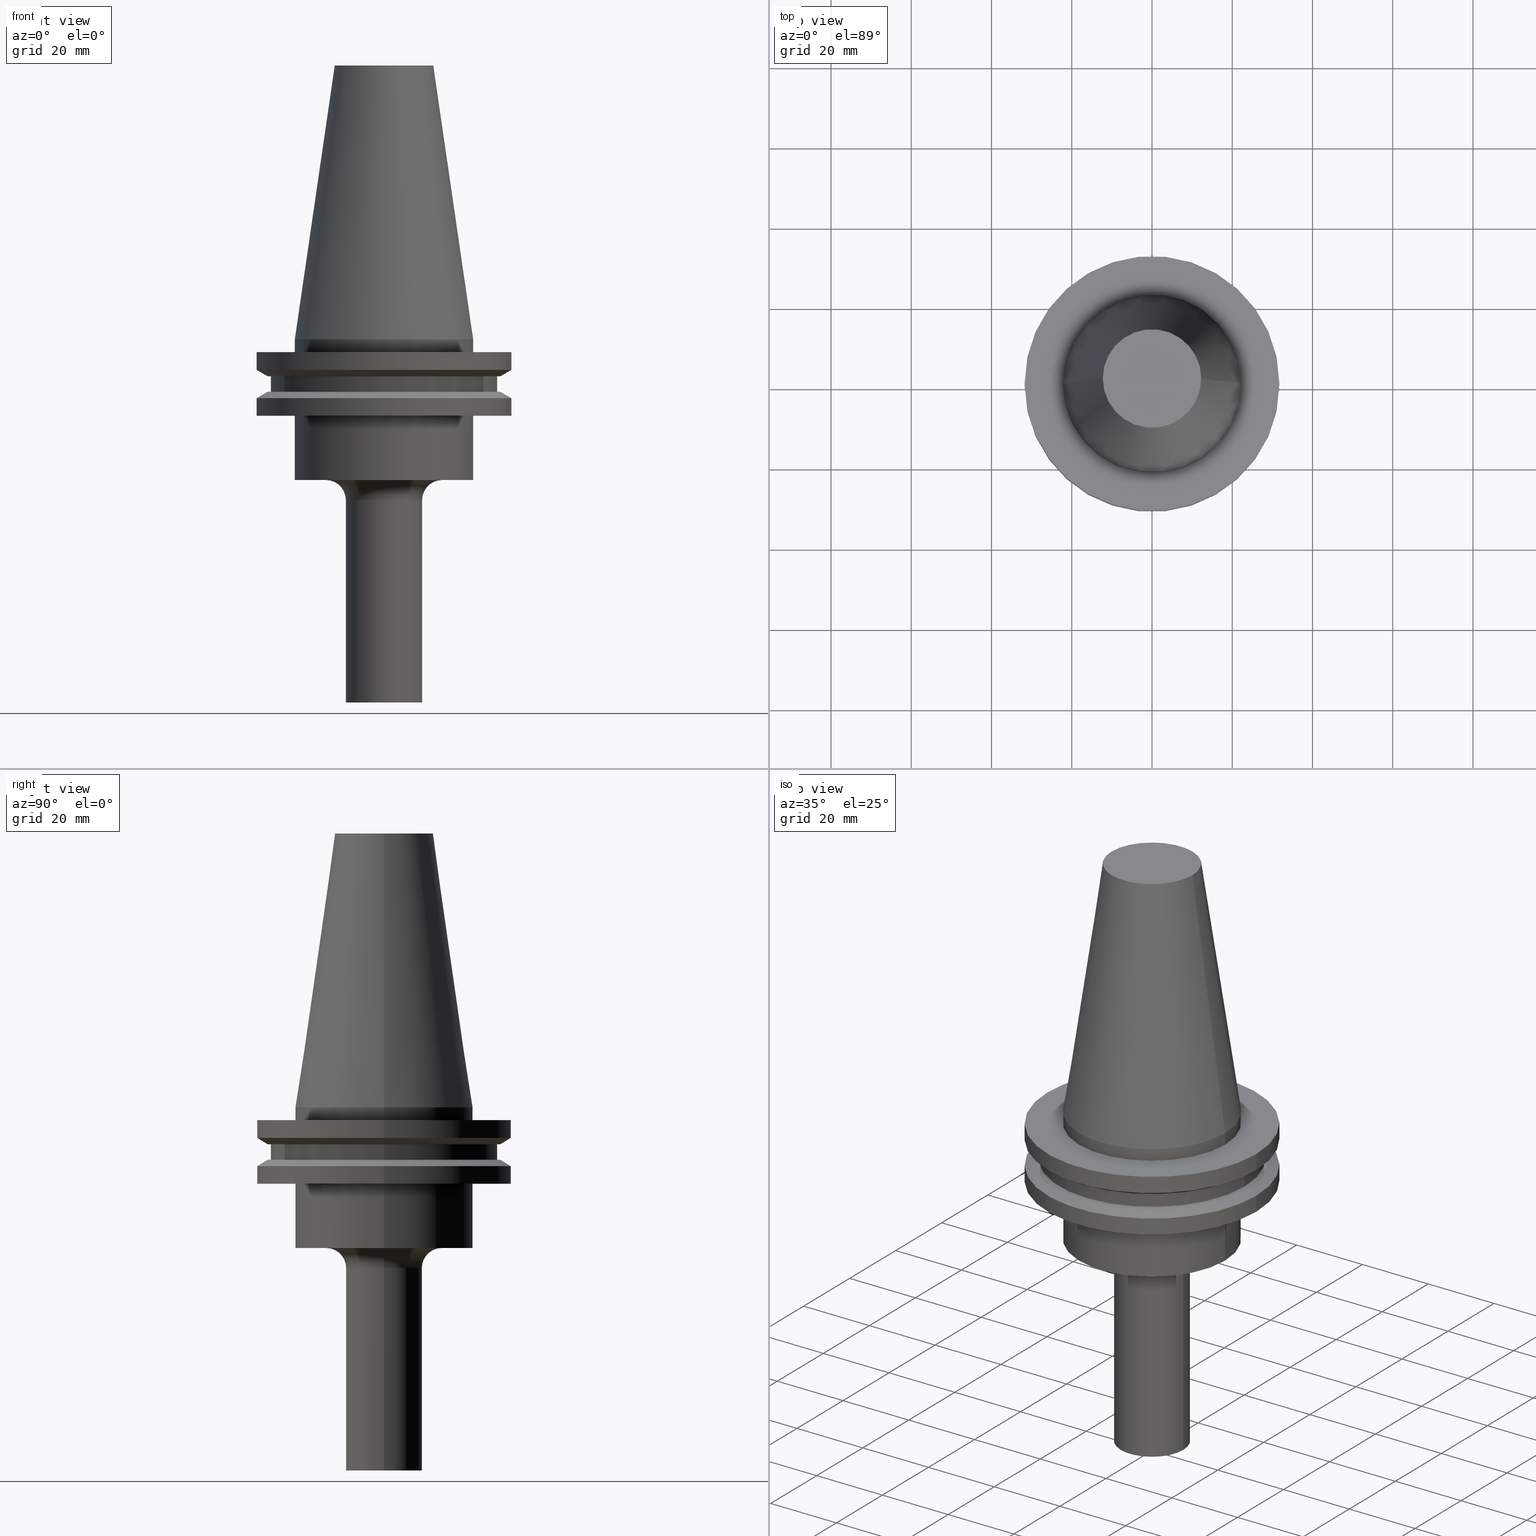
[diagram: canonical four-view strip — front | top / right | iso, engineering-drawing reading convention]
A machine part, canonical four-view strip (front | top / right | iso — engineering-drawing reading convention). The complete STEP part file that produces these views, byte-faithful:
ISO-10303-21;
HEADER;
FILE_DESCRIPTION (( 'STEP AP203' ),
    '1' );
FILE_NAME ('11_326_411.stp',
    '2022-03-07T22:02:29',
    ( '' ),
    ( '' ),
    'SwSTEP 2.0',
    'SolidWorks 2021',
    '' );
FILE_SCHEMA (( 'CONFIG_CONTROL_DESIGN' ));
ENDSEC;

DATA;
#1 = ORIENTED_EDGE ( 'NONE', *, *, #329, .T. ) ;
#2 = CIRCLE ( 'NONE', #444, 31.75000000000000000 ) ;
#3 = EDGE_LOOP ( 'NONE', ( #535, #403 ) ) ;
#4 = AXIS2_PLACEMENT_3D ( 'NONE', #557, #18, #663 ) ;
#5 = AXIS2_PLACEMENT_3D ( 'NONE', #489, #6, #251 ) ;
#6 = DIRECTION ( 'NONE',  ( -0.000000000000000000, -0.000000000000000000, 1.000000000000000000 ) ) ;
#7 = DIRECTION ( 'NONE',  ( 0.000000000000000000, 0.000000000000000000, -1.000000000000000000 ) ) ;
#8 = APPROVAL ( #763, 'UNSPECIFIED' ) ;
#9 = EDGE_CURVE ( 'NONE', #482, #291, #396, .T. ) ;
#10 = CARTESIAN_POINT ( 'NONE',  ( 22.22500000000000142, 0.000000000000000000, -35.04999999999999716 ) ) ;
#11 = DIRECTION ( 'NONE',  ( 1.000000000000000000, 0.000000000000000000, 0.000000000000000000 ) ) ;
#12 = DIRECTION ( 'NONE',  ( 1.000000000000000000, 0.000000000000000000, 0.000000000000000000 ) ) ;
#13 = FACE_OUTER_BOUND ( 'NONE', #108, .T. ) ;
#14 = FACE_OUTER_BOUND ( 'NONE', #57, .T. ) ;
#15 = DIRECTION ( 'NONE',  ( 1.000000000000000000, 0.000000000000000000, 0.000000000000000000 ) ) ;
#16 = CIRCLE ( 'NONE', #457, 31.75000000000000000 ) ;
#17 = CIRCLE ( 'NONE', #183, 12.27178102086201150 ) ;
#18 = DIRECTION ( 'NONE',  ( 0.000000000000000000, 0.000000000000000000, -1.000000000000000000 ) ) ;
#19 = PLANE ( 'NONE',  #759 ) ;
#20 = DIRECTION ( 'NONE',  ( 1.000000000000000000, 0.000000000000000000, 0.000000000000000000 ) ) ;
#21 = CYLINDRICAL_SURFACE ( 'NONE', #324, 22.22500000000000142 ) ;
#22 = DIRECTION ( 'NONE',  ( -0.000000000000000000, -0.000000000000000000, 1.000000000000000000 ) ) ;
#23 = FACE_OUTER_BOUND ( 'NONE', #339, .T. ) ;
#24 = DIRECTION ( 'NONE',  ( -0.000000000000000000, -0.000000000000000000, 1.000000000000000000 ) ) ;
#25 = EDGE_CURVE ( 'NONE', #526, #573, #492, .T. ) ;
#26 = DATE_AND_TIME ( #566, #579 ) ;
#27 = DIRECTION ( 'NONE',  ( -0.000000000000000000, -0.000000000000000000, 1.000000000000000000 ) ) ;
#28 = CIRCLE ( 'NONE', #476, 22.22500000000000142 ) ;
#29 = SECURITY_CLASSIFICATION_LEVEL ( 'unclassified' ) ;
#30 = FACE_OUTER_BOUND ( 'NONE', #717, .T. ) ;
#31 = DIRECTION ( 'NONE',  ( 1.000000000000000000, 0.000000000000000000, 0.000000000000000000 ) ) ;
#32 = ORIENTED_EDGE ( 'NONE', *, *, #355, .F. ) ;
#33 = CYLINDRICAL_SURFACE ( 'NONE', #483, 22.22500000000000142 ) ;
#34 = DIRECTION ( 'NONE',  ( 1.000000000000000000, 0.000000000000000000, 0.000000000000000000 ) ) ;
#35 = CONICAL_SURFACE ( 'NONE', #481, 28.97919780457007732, 1.047197551196598297 ) ;
#36 = APPLICATION_CONTEXT ( 'configuration controlled 3d designs of mechanical parts and assemblies' ) ;
#37 = EDGE_LOOP ( 'NONE', ( #571, #194, #114, #1 ) ) ;
#38 = FACE_OUTER_BOUND ( 'NONE', #301, .T. ) ;
#39 = DIRECTION ( 'NONE',  ( -0.000000000000000000, -0.000000000000000000, 1.000000000000000000 ) ) ;
#40 = APPROVAL_ROLE ( '' ) ;
#41 = CIRCLE ( 'NONE', #644, 4.999999999999997335 ) ;
#42 = VERTEX_POINT ( 'NONE', #129 ) ;
#43 = EDGE_CURVE ( 'NONE', #192, #770, #599, .T. ) ;
#44 = SHAPE_DEFINITION_REPRESENTATION ( #308, #350 ) ;
#45 = CC_DESIGN_APPROVAL ( #292, ( #85 ) ) ;
#46 = EDGE_LOOP ( 'NONE', ( #477, #359 ) ) ;
#47 = DIRECTION ( 'NONE',  ( -0.000000000000000000, -0.000000000000000000, 1.000000000000000000 ) ) ;
#48 = ORIENTED_EDGE ( 'NONE', *, *, #329, .F. ) ;
#49 = AXIS2_PLACEMENT_3D ( 'NONE', #591, #769, #708 ) ;
#50 = ORIENTED_EDGE ( 'NONE', *, *, #167, .T. ) ;
#51 = DIRECTION ( 'NONE',  ( 1.000000000000000000, 0.000000000000000000, 0.000000000000000000 ) ) ;
#52 = LINE ( 'NONE', #413, #548 ) ;
#53 = ORIENTED_EDGE ( 'NONE', *, *, #705, .T. ) ;
#54 = ORIENTED_EDGE ( 'NONE', *, *, #182, .T. ) ;
#55 = ADVANCED_FACE ( 'NONE', ( #13, #601 ), #669, .F. ) ;
#56 = FACE_OUTER_BOUND ( 'NONE', #697, .T. ) ;
#57 = EDGE_LOOP ( 'NONE', ( #484, #706, #767, #427 ) ) ;
#58 = EDGE_CURVE ( 'NONE', #297, #74, #534, .T. ) ;
#59 = EDGE_LOOP ( 'NONE', ( #237, #366, #289, #66 ) ) ;
#60 = VECTOR ( 'NONE', #698, 1000.000000000000000 ) ;
#61 = CARTESIAN_POINT ( 'NONE',  ( 0.000000000000000000, 0.000000000000000000, -9.205000000000005400 ) ) ;
#62 = ORIENTED_EDGE ( 'NONE', *, *, #631, .F. ) ;
#63 = EDGE_LOOP ( 'NONE', ( #539, #753 ) ) ;
#64 = ADVANCED_FACE ( 'NONE', ( #202 ), #604, .T. ) ;
#65 = LINE ( 'NONE', #668, #215 ) ;
#66 = ORIENTED_EDGE ( 'NONE', *, *, #519, .F. ) ;
#67 = EDGE_CURVE ( 'NONE', #234, #772, #16, .T. ) ;
#68 = AXIS2_PLACEMENT_3D ( 'NONE', #310, #546, #7 ) ;
#69 = TOROIDAL_SURFACE ( 'NONE', #83, 14.49999999999999822, 4.999999999999999112 ) ;
#70 = VECTOR ( 'NONE', #733, 1000.000000000000000 ) ;
#71 = DIRECTION ( 'NONE',  ( -0.000000000000000000, -0.000000000000000000, 1.000000000000000000 ) ) ;
#72 = CARTESIAN_POINT ( 'NONE',  ( 0.000000000000000000, 28.97919780457007732, -9.204999999999996518 ) ) ;
#73 = ADVANCED_FACE ( 'NONE', ( #609 ), #78, .F. ) ;
#74 = VERTEX_POINT ( 'NONE', #331 ) ;
#75 = DIRECTION ( 'NONE',  ( 1.000000000000000000, 0.000000000000000000, 0.000000000000000000 ) ) ;
#76 = CARTESIAN_POINT ( 'NONE',  ( 0.000000000000000000, 0.000000000000000000, 68.25000000000000000 ) ) ;
#77 = EDGE_CURVE ( 'NONE', #125, #184, #217, .T. ) ;
#78 = PLANE ( 'NONE',  #4 ) ;
#79 = DIRECTION ( 'NONE',  ( 1.000000000000000000, 0.000000000000000000, 0.000000000000000000 ) ) ;
#80 = AXIS2_PLACEMENT_3D ( 'NONE', #701, #290, #774 ) ;
#81 = DIRECTION ( 'NONE',  ( 1.000000000000000000, 0.000000000000000000, 0.000000000000000000 ) ) ;
#82 = VECTOR ( 'NONE', #567, 1000.000000000000000 ) ;
#83 = AXIS2_PLACEMENT_3D ( 'NONE', #263, #611, #81 ) ;
#84 = DIRECTION ( 'NONE',  ( 0.1443082272672999711, 1.767266086135276757E-17, -0.9895327864921755756 ) ) ;
#85 = PRODUCT_DEFINITION_FORMATION_WITH_SPECIFIED_SOURCE ( 'ANY', '', #336, .NOT_KNOWN. ) ;
#86 = CARTESIAN_POINT ( 'NONE',  ( 31.75000000000000000, 3.888253587292846476E-15, -14.65472339340266572 ) ) ;
#87 = CARTESIAN_POINT ( 'NONE',  ( 0.000000000000000000, 0.000000000000000000, 68.25000000000000000 ) ) ;
#88 = FACE_OUTER_BOUND ( 'NONE', #197, .T. ) ;
#89 = EDGE_CURVE ( 'NONE', #298, #422, #696, .T. ) ;
#90 = DIRECTION ( 'NONE',  ( -0.000000000000000000, -0.000000000000000000, 1.000000000000000000 ) ) ;
#91 = APPROVAL_DATE_TIME ( #744, #200 ) ;
#92 = DIRECTION ( 'NONE',  ( -0.000000000000000000, -0.000000000000000000, 1.000000000000000000 ) ) ;
#93 = ADVANCED_FACE ( 'NONE', ( #30 ), #33, .T. ) ;
#94 = PERSON_AND_ORGANIZATION_ROLE ( 'design_supplier' ) ;
#95 = DIRECTION ( 'NONE',  ( -1.000000000000000000, 1.224646799147353454E-16, 0.000000000000000000 ) ) ;
#96 = AXIS2_PLACEMENT_3D ( 'NONE', #563, #22, #266 ) ;
#97 = ORIENTED_EDGE ( 'NONE', *, *, #508, .F. ) ;
#98 = CARTESIAN_POINT ( 'NONE',  ( 0.000000000000000000, 0.000000000000000000, 68.25000000000000000 ) ) ;
#99 = FACE_OUTER_BOUND ( 'NONE', #363, .T. ) ;
#100 = APPLICATION_PROTOCOL_DEFINITION ( 'international standard', 'config_control_design', 1994, #469 ) ;
#101 = VERTEX_POINT ( 'NONE', #334 ) ;
#102 = FACE_OUTER_BOUND ( 'NONE', #700, .T. ) ;
#103 = DIRECTION ( 'NONE',  ( 0.000000000000000000, 0.000000000000000000, 1.000000000000000000 ) ) ;
#104 = EDGE_CURVE ( 'NONE', #666, #422, #686, .T. ) ;
#105 = ORIENTED_EDGE ( 'NONE', *, *, #294, .T. ) ;
#106 = VECTOR ( 'NONE', #402, 1000.000000000000000 ) ;
#107 = EDGE_CURVE ( 'NONE', #422, #298, #556, .T. ) ;
#108 = EDGE_LOOP ( 'NONE', ( #664, #581 ) ) ;
#109 = PLANE ( 'NONE',  #368 ) ;
#110 = ORIENTED_EDGE ( 'NONE', *, *, #67, .F. ) ;
#111 = CC_DESIGN_APPROVAL ( #8, ( #388 ) ) ;
#112 = ORIENTED_EDGE ( 'NONE', *, *, #531, .T. ) ;
#113 = CARTESIAN_POINT ( 'NONE',  ( -14.49999999999999822, 1.775737858763662015E-15, -35.04999999999999716 ) ) ;
#114 = ORIENTED_EDGE ( 'NONE', *, *, #582, .T. ) ;
#115 = ORIENTED_EDGE ( 'NONE', *, *, #107, .F. ) ;
#116 = DIRECTION ( 'NONE',  ( 1.000000000000000000, 0.000000000000000000, 0.000000000000000000 ) ) ;
#117 = DIRECTION ( 'NONE',  ( -0.000000000000000000, -0.000000000000000000, 1.000000000000000000 ) ) ;
#118 = ORIENTED_EDGE ( 'NONE', *, *, #511, .T. ) ;
#119 = ORIENTED_EDGE ( 'NONE', *, *, #89, .F. ) ;
#120 = DIRECTION ( 'NONE',  ( 1.000000000000000000, 0.000000000000000000, 0.000000000000000000 ) ) ;
#121 = EDGE_LOOP ( 'NONE', ( #246, #645, #261, #177 ) ) ;
#122 = AXIS2_PLACEMENT_3D ( 'NONE', #327, #92, #734 ) ;
#123 = APPROVAL_PERSON_ORGANIZATION ( #229, #200, #40 ) ;
#124 = EDGE_CURVE ( 'NONE', #577, #776, #729, .T. ) ;
#125 = VERTEX_POINT ( 'NONE', #338 ) ;
#126 = ORIENTED_EDGE ( 'NONE', *, *, #127, .T. ) ;
#127 = EDGE_CURVE ( 'NONE', #712, #234, #278, .T. ) ;
#128 = CARTESIAN_POINT ( 'NONE',  ( 0.000000000000000000, 31.75000000000000000, -3.174999999999993605 ) ) ;
#129 = CARTESIAN_POINT ( 'NONE',  ( -28.17999999999999972, 3.451054679997241634E-15, -9.204999999999991189 ) ) ;
#130 = AXIS2_PLACEMENT_3D ( 'NONE', #256, #552, #207 ) ;
#131 = CIRCLE ( 'NONE', #561, 22.22500000000000142 ) ;
#132 = DIRECTION ( 'NONE',  ( 0.8660254037844389297, 0.000000000000000000, 0.4999999999999995004 ) ) ;
#133 = DIRECTION ( 'NONE',  ( 1.000000000000000000, 0.000000000000000000, 0.000000000000000000 ) ) ;
#134 = CARTESIAN_POINT ( 'NONE',  ( 0.000000000000000000, 0.000000000000000000, 68.25000000000000000 ) ) ;
#135 = CARTESIAN_POINT ( 'NONE',  ( 0.000000000000000000, 0.000000000000000000, -7.605276606597335842 ) ) ;
#136 = EDGE_CURVE ( 'NONE', #353, #297, #750, .T. ) ;
#137 = DIRECTION ( 'NONE',  ( -0.000000000000000000, -0.000000000000000000, 1.000000000000000000 ) ) ;
#138 = DIRECTION ( 'NONE',  ( -1.000000000000000000, 0.000000000000000000, -0.000000000000000000 ) ) ;
#139 = CARTESIAN_POINT ( 'NONE',  ( 0.000000000000000000, 0.000000000000000000, 0.000000000000000000 ) ) ;
#140 = EDGE_CURVE ( 'NONE', #184, #515, #660, .T. ) ;
#141 = CARTESIAN_POINT ( 'NONE',  ( -9.500000000000000000, 1.163414459189985485E-15, -90.50000000000000000 ) ) ;
#142 = CARTESIAN_POINT ( 'NONE',  ( 22.22500000000000142, 0.000000000000000000, 68.25000000000000000 ) ) ;
#143 = AXIS2_PLACEMENT_3D ( 'NONE', #87, #330, #620 ) ;
#144 = FACE_OUTER_BOUND ( 'NONE', #320, .T. ) ;
#145 = CIRCLE ( 'NONE', #684, 31.74999999999999289 ) ;
#146 = DIRECTION ( 'NONE',  ( -0.000000000000000000, -0.000000000000000000, 1.000000000000000000 ) ) ;
#147 = AXIS2_PLACEMENT_3D ( 'NONE', #451, #27, #398 ) ;
#148 = FACE_OUTER_BOUND ( 'NONE', #186, .T. ) ;
#149 = CIRCLE ( 'NONE', #165, 28.97919780457008088 ) ;
#150 = ADVANCED_FACE ( 'NONE', ( #148 ), #21, .T. ) ;
#151 = CARTESIAN_POINT ( 'NONE',  ( 0.000000000000000000, 0.000000000000000000, 0.000000000000000000 ) ) ;
#152 = ORIENTED_EDGE ( 'NONE', *, *, #582, .F. ) ;
#153 = CC_DESIGN_PERSON_AND_ORGANIZATION_ASSIGNMENT ( #394, #749, ( #85 ) ) ;
#154 = CALENDAR_DATE ( 2022, 7, 3 ) ;
#155 = CARTESIAN_POINT ( 'NONE',  ( 22.22500000000000142, 2.721777511104992849E-15, 0.000000000000000000 ) ) ;
#156 = ADVANCED_FACE ( 'NONE', ( #88 ), #282, .F. ) ;
#157 = DIRECTION ( 'NONE',  ( -0.000000000000000000, -0.000000000000000000, 1.000000000000000000 ) ) ;
#158 = ADVANCED_FACE ( 'NONE', ( #99 ), #265, .T. ) ;
#159 = APPROVAL_STATUS ( 'not_yet_approved' ) ;
#160 = CARTESIAN_POINT ( 'NONE',  ( 0.000000000000000000, 0.000000000000000000, 68.25000000000000000 ) ) ;
#161 = UNCERTAINTY_MEASURE_WITH_UNIT (LENGTH_MEASURE( 1.000000000000000082E-05 ), #345, 'distance_accuracy_value', 'NONE');
#162 = AXIS2_PLACEMENT_3D ( 'NONE', #255, #424, #133 ) ;
#163 = CARTESIAN_POINT ( 'NONE',  ( -22.22500000000000142, 2.721777511104992849E-15, 68.25000000000000000 ) ) ;
#164 = DIRECTION ( 'NONE',  ( -0.000000000000000000, -0.000000000000000000, 1.000000000000000000 ) ) ;
#165 = AXIS2_PLACEMENT_3D ( 'NONE', #754, #341, #637 ) ;
#166 = ORIENTED_EDGE ( 'NONE', *, *, #136, .F. ) ;
#167 = EDGE_CURVE ( 'NONE', #369, #731, #41, .T. ) ;
#168 = MANIFOLD_SOLID_BREP ( 'CKB', #423 ) ;
#169 = CARTESIAN_POINT ( 'NONE',  ( -28.97919780457008088, 0.000000000000000000, -13.05499999999999794 ) ) ;
#170 = LINE ( 'NONE', #470, #106 ) ;
#171 =( NAMED_UNIT ( * ) SI_UNIT ( $, .STERADIAN. ) SOLID_ANGLE_UNIT ( ) );
#172 = CONICAL_SURFACE ( 'NONE', #711, 28.97919780457007732, 1.047197551196598297 ) ;
#173 = ORIENTED_EDGE ( 'NONE', *, *, #370, .T. ) ;
#174 = FACE_BOUND ( 'NONE', #188, .T. ) ;
#175 = CARTESIAN_POINT ( 'NONE',  ( 0.000000000000000000, 0.000000000000000000, 0.000000000000000000 ) ) ;
#176 = ORIENTED_EDGE ( 'NONE', *, *, #348, .T. ) ;
#177 = ORIENTED_EDGE ( 'NONE', *, *, #305, .F. ) ;
#178 = CARTESIAN_POINT ( 'NONE',  ( -31.75000000000000000, 3.888253587292846476E-15, 68.25000000000000000 ) ) ;
#179 = VECTOR ( 'NONE', #395, 1000.000000000000000 ) ;
#180 = DIRECTION ( 'NONE',  ( 1.000000000000000000, 0.000000000000000000, 0.000000000000000000 ) ) ;
#181 = ORIENTED_EDGE ( 'NONE', *, *, #214, .T. ) ;
#182 = EDGE_CURVE ( 'NONE', #353, #630, #740, .T. ) ;
#183 = AXIS2_PLACEMENT_3D ( 'NONE', #76, #434, #672 ) ;
#184 = VERTEX_POINT ( 'NONE', #155 ) ;
#185 = DIRECTION ( 'NONE',  ( 1.000000000000000000, 0.000000000000000000, 0.000000000000000000 ) ) ;
#186 = EDGE_LOOP ( 'NONE', ( #578, #714, #480, #405 ) ) ;
#187 = CIRCLE ( 'NONE', #594, 28.17999999999999972 ) ;
#188 = EDGE_LOOP ( 'NONE', ( #173, #641 ) ) ;
#189 = CARTESIAN_POINT ( 'NONE',  ( 31.75000000000000000, 0.000000000000000000, -14.65472339340266572 ) ) ;
#190 = EDGE_CURVE ( 'NONE', #225, #739, #652, .T. ) ;
#191 = VECTOR ( 'NONE', #410, 1000.000000000000000 ) ;
#192 = VERTEX_POINT ( 'NONE', #692 ) ;
#193 = AXIS2_PLACEMENT_3D ( 'NONE', #761, #357, #232 ) ;
#194 = ORIENTED_EDGE ( 'NONE', *, *, #777, .F. ) ;
#195 = AXIS2_PLACEMENT_3D ( 'NONE', #269, #570, #695 ) ;
#196 = EDGE_CURVE ( 'NONE', #287, #42, #187, .T. ) ;
#197 = EDGE_LOOP ( 'NONE', ( #467, #649 ) ) ;
#198 = FACE_OUTER_BOUND ( 'NONE', #640, .T. ) ;
#199 = CARTESIAN_POINT ( 'NONE',  ( 0.000000000000000000, 0.000000000000000000, -90.50000000000000000 ) ) ;
#200 = APPROVAL ( #575, 'UNSPECIFIED' ) ;
#201 = FACE_BOUND ( 'NONE', #46, .T. ) ;
#202 = FACE_OUTER_BOUND ( 'NONE', #280, .T. ) ;
#203 = CYLINDRICAL_SURFACE ( 'NONE', #522, 28.17999999999999972 ) ;
#204 = DIRECTION ( 'NONE',  ( 1.000000000000000000, 0.000000000000000000, 0.000000000000000000 ) ) ;
#205 = CC_DESIGN_PERSON_AND_ORGANIZATION_ASSIGNMENT ( #333, #94, ( #85 ) ) ;
#206 = ORIENTED_EDGE ( 'NONE', *, *, #253, .T. ) ;
#207 = DIRECTION ( 'NONE',  ( 1.000000000000000000, 0.000000000000000000, 0.000000000000000000 ) ) ;
#208 = DIRECTION ( 'NONE',  ( 1.000000000000000000, 0.000000000000000000, 0.000000000000000000 ) ) ;
#209 = DIRECTION ( 'NONE',  ( 1.000000000000000000, 0.000000000000000000, 0.000000000000000000 ) ) ;
#210 = EDGE_CURVE ( 'NONE', #666, #521, #605, .T. ) ;
#211 = CARTESIAN_POINT ( 'NONE',  ( 31.75000000000000000, 0.000000000000000000, 68.25000000000000000 ) ) ;
#212 = PLANE ( 'NONE',  #537 ) ;
#213 = DIRECTION ( 'NONE',  ( -0.1443082272672999711, 0.000000000000000000, -0.9895327864921755756 ) ) ;
#214 = EDGE_CURVE ( 'NONE', #101, #515, #532, .T. ) ;
#215 = VECTOR ( 'NONE', #487, 1000.000000000000000 ) ;
#216 = APPROVAL_DATE_TIME ( #223, #292 ) ;
#217 = LINE ( 'NONE', #741, #589 ) ;
#218 = LINE ( 'NONE', #502, #608 ) ;
#219 = DATE_TIME_ROLE ( 'classification_date' ) ;
#220 = DIRECTION ( 'NONE',  ( -0.000000000000000000, -0.000000000000000000, 1.000000000000000000 ) ) ;
#221 = AXIS2_PLACEMENT_3D ( 'NONE', #647, #584, #51 ) ;
#222 = CARTESIAN_POINT ( 'NONE',  ( 0.000000000000000000, 0.000000000000000000, -14.65472339340266572 ) ) ;
#223 = DATE_AND_TIME ( #154, #719 ) ;
#224 = DIRECTION ( 'NONE',  ( -0.000000000000000000, -0.000000000000000000, 1.000000000000000000 ) ) ;
#225 = VERTEX_POINT ( 'NONE', #285 ) ;
#226 = VECTOR ( 'NONE', #445, 1000.000000000000000 ) ;
#227 = CARTESIAN_POINT ( 'NONE',  ( -9.499999999999998224, 1.163414459189985288E-15, -40.04999999999999716 ) ) ;
#228 = DIRECTION ( 'NONE',  ( -1.000000000000000000, 0.000000000000000000, 0.000000000000000000 ) ) ;
#229 = PERSON_AND_ORGANIZATION ( #239, #460 ) ;
#230 = AXIS2_PLACEMENT_3D ( 'NONE', #139, #494, #322 ) ;
#231 = EDGE_LOOP ( 'NONE', ( #347, #53, #358, #152 ) ) ;
#232 = DIRECTION ( 'NONE',  ( 1.000000000000000000, 0.000000000000000000, 0.000000000000000000 ) ) ;
#233 = ORIENTED_EDGE ( 'NONE', *, *, #43, .T. ) ;
#234 = VERTEX_POINT ( 'NONE', #699 ) ;
#235 = DIRECTION ( 'NONE',  ( -0.000000000000000000, -0.000000000000000000, 1.000000000000000000 ) ) ;
#236 = EDGE_LOOP ( 'NONE', ( #760, #399, #538, #490 ) ) ;
#237 = ORIENTED_EDGE ( 'NONE', *, *, #373, .F. ) ;
#238 = DIRECTION ( 'NONE',  ( -0.000000000000000000, -0.000000000000000000, 1.000000000000000000 ) ) ;
#239 = PERSON ( 'UNSPECIFIED', 'UNSPECIFIED', 'UNSPECIFIED', ('UNSPECIFIED'), ('UNSPECIFIED'), ('UNSPECIFIED') ) ;
#240 = ADVANCED_FACE ( 'NONE', ( #766 ), #172, .T. ) ;
#241 = ORIENTED_EDGE ( 'NONE', *, *, #355, .T. ) ;
#242 = CIRCLE ( 'NONE', #96, 12.27178102086201150 ) ;
#243 = ORIENTED_EDGE ( 'NONE', *, *, #495, .T. ) ;
#244 = CARTESIAN_POINT ( 'NONE',  ( 0.000000000000000000, 0.000000000000000000, -9.205000000000005400 ) ) ;
#245 = ORIENTED_EDGE ( 'NONE', *, *, #364, .F. ) ;
#246 = ORIENTED_EDGE ( 'NONE', *, *, #190, .T. ) ;
#247 = ADVANCED_FACE ( 'NONE', ( #102 ), #580, .T. ) ;
#248 = ORIENTED_EDGE ( 'NONE', *, *, #348, .F. ) ;
#249 = CIRCLE ( 'NONE', #661, 31.75000000000000000 ) ;
#250 = APPROVAL_PERSON_ORGANIZATION ( #509, #8, #651 ) ;
#251 = DIRECTION ( 'NONE',  ( 1.000000000000000000, 0.000000000000000000, 0.000000000000000000 ) ) ;
#252 = DIRECTION ( 'NONE',  ( -0.000000000000000000, -0.000000000000000000, 1.000000000000000000 ) ) ;
#253 = EDGE_CURVE ( 'NONE', #712, #283, #400, .T. ) ;
#254 = CARTESIAN_POINT ( 'NONE',  ( -31.74999999999999289, 3.888253587292845687E-15, -19.04999999999999716 ) ) ;
#255 = CARTESIAN_POINT ( 'NONE',  ( 0.000000000000000000, 0.000000000000000000, -14.65472339340266572 ) ) ;
#256 = CARTESIAN_POINT ( 'NONE',  ( 0.000000000000000000, 0.000000000000000000, 68.25000000000000000 ) ) ;
#257 = CARTESIAN_POINT ( 'NONE',  ( 0.000000000000000000, 0.000000000000000000, -7.605276606597335842 ) ) ;
#258 = CYLINDRICAL_SURFACE ( 'NONE', #230, 9.499999999999998224 ) ;
#259 = FACE_OUTER_BOUND ( 'NONE', #236, .T. ) ;
#260 = AXIS2_PLACEMENT_3D ( 'NONE', #98, #284, #397 ) ;
#261 = ORIENTED_EDGE ( 'NONE', *, *, #196, .F. ) ;
#262 = DIRECTION ( 'NONE',  ( -0.000000000000000000, -0.000000000000000000, 1.000000000000000000 ) ) ;
#263 = CARTESIAN_POINT ( 'NONE',  ( 0.000000000000000000, 0.000000000000000000, -40.04999999999999716 ) ) ;
#264 = AXIS2_PLACEMENT_3D ( 'NONE', #61, #238, #185 ) ;
#265 = CYLINDRICAL_SURFACE ( 'NONE', #147, 31.75000000000000000 ) ;
#266 = DIRECTION ( 'NONE',  ( 1.000000000000000000, 0.000000000000000000, 0.000000000000000000 ) ) ;
#267 = CARTESIAN_POINT ( 'NONE',  ( -28.17999999999999972, 3.451054679997241634E-15, 68.25000000000000000 ) ) ;
#268 = ADVANCED_FACE ( 'NONE', ( #174, #56 ), #109, .F. ) ;
#269 = CARTESIAN_POINT ( 'NONE',  ( 0.000000000000000000, 9.500000000000000000, -90.50000000000000000 ) ) ;
#270 = CARTESIAN_POINT ( 'NONE',  ( 22.22500000000000142, 0.000000000000000000, -19.04999999999999716 ) ) ;
#271 = AXIS2_PLACEMENT_3D ( 'NONE', #199, #252, #379 ) ;
#272 = VECTOR ( 'NONE', #132, 1000.000000000000000 ) ;
#273 = PERSON_AND_ORGANIZATION ( #239, #460 ) ;
#274 = CARTESIAN_POINT ( 'NONE',  ( 0.000000000000000000, 0.000000000000000000, -13.05499999999999794 ) ) ;
#275 = CC_DESIGN_PERSON_AND_ORGANIZATION_ASSIGNMENT ( #453, #337, ( #335 ) ) ;
#276 = DIRECTION ( 'NONE',  ( -1.000000000000000000, 0.000000000000000000, 0.000000000000000000 ) ) ;
#277 = PERSON_AND_ORGANIZATION_ROLE ( 'classification_officer' ) ;
#278 = LINE ( 'NONE', #500, #82 ) ;
#279 = ADVANCED_FACE ( 'NONE', ( #755 ), #752, .T. ) ;
#280 = EDGE_LOOP ( 'NONE', ( #62, #468, #344, #32 ) ) ;
#281 = LINE ( 'NONE', #163, #60 ) ;
#282 = PLANE ( 'NONE',  #195 ) ;
#283 = VERTEX_POINT ( 'NONE', #421 ) ;
#284 = DIRECTION ( 'NONE',  ( -0.000000000000000000, -0.000000000000000000, 1.000000000000000000 ) ) ;
#285 = CARTESIAN_POINT ( 'NONE',  ( 28.17999999999999972, 0.000000000000000000, -13.05499999999999794 ) ) ;
#286 = COORDINATED_UNIVERSAL_TIME_OFFSET ( 6, 0, .BEHIND. ) ;
#287 = VERTEX_POINT ( 'NONE', #536 ) ;
#288 = TOROIDAL_SURFACE ( 'NONE', #374, 14.49999999999999822, 4.999999999999999112 ) ;
#289 = ORIENTED_EDGE ( 'NONE', *, *, #305, .T. ) ;
#290 = DIRECTION ( 'NONE',  ( -0.000000000000000000, -0.000000000000000000, 1.000000000000000000 ) ) ;
#291 = VERTEX_POINT ( 'NONE', #346 ) ;
#292 = APPROVAL ( #159, 'UNSPECIFIED' ) ;
#293 = ORIENTED_EDGE ( 'NONE', *, *, #746, .T. ) ;
#294 = EDGE_CURVE ( 'NONE', #630, #353, #145, .T. ) ;
#295 = LINE ( 'NONE', #267, #656 ) ;
#296 = LINE ( 'NONE', #443, #742 ) ;
#297 = VERTEX_POINT ( 'NONE', #189 ) ;
#298 = VERTEX_POINT ( 'NONE', #642 ) ;
#299 = DIRECTION ( 'NONE',  ( -0.000000000000000000, -0.000000000000000000, 1.000000000000000000 ) ) ;
#300 = AXIS2_PLACEMENT_3D ( 'NONE', #562, #384, #208 ) ;
#301 = EDGE_LOOP ( 'NONE', ( #636, #293, #115, #541 ) ) ;
#302 = COORDINATED_UNIVERSAL_TIME_OFFSET ( 6, 0, .BEHIND. ) ;
#303 = CONICAL_SURFACE ( 'NONE', #732, 31.75000000000000000, 1.047197551196597853 ) ;
#304 = VERTEX_POINT ( 'NONE', #713 ) ;
#305 = EDGE_CURVE ( 'NONE', #225, #287, #574, .T. ) ;
#306 = EDGE_CURVE ( 'NONE', #521, #666, #576, .T. ) ;
#307 = ORIENTED_EDGE ( 'NONE', *, *, #306, .F. ) ;
#308 = PRODUCT_DEFINITION_SHAPE ( 'NONE', 'NONE',  #335 ) ;
#309 = CARTESIAN_POINT ( 'NONE',  ( 0.000000000000000000, 0.000000000000000000, 68.25000000000000000 ) ) ;
#310 = CARTESIAN_POINT ( 'NONE',  ( 14.49999999999999822, 0.000000000000000000, -40.04999999999999716 ) ) ;
#311 = CIRCLE ( 'NONE', #773, 14.49999999999999822 ) ;
#312 = ADVANCED_FACE ( 'NONE', ( #658 ), #716, .T. ) ;
#313 = CC_DESIGN_SECURITY_CLASSIFICATION ( #388, ( #85 ) ) ;
#314 = DIRECTION ( 'NONE',  ( 1.000000000000000000, 0.000000000000000000, 0.000000000000000000 ) ) ;
#315 = DIRECTION ( 'NONE',  ( 0.000000000000000000, -0.000000000000000000, 1.000000000000000000 ) ) ;
#316 = CYLINDRICAL_SURFACE ( 'NONE', #130, 22.22500000000000142 ) ;
#317 = ORIENTED_EDGE ( 'NONE', *, *, #127, .F. ) ;
#318 = CARTESIAN_POINT ( 'NONE',  ( -22.22500000000000142, 2.721777511104992849E-15, -35.04999999999999716 ) ) ;
#319 = VECTOR ( 'NONE', #299, 1000.000000000000000 ) ;
#320 = EDGE_LOOP ( 'NONE', ( #725, #233 ) ) ;
#321 = DIRECTION ( 'NONE',  ( 1.000000000000000000, 0.000000000000000000, 0.000000000000000000 ) ) ;
#322 = DIRECTION ( 'NONE',  ( 1.000000000000000000, 0.000000000000000000, 0.000000000000000000 ) ) ;
#323 = CARTESIAN_POINT ( 'NONE',  ( -31.75000000000000000, 0.000000000000000000, -14.65472339340266572 ) ) ;
#324 = AXIS2_PLACEMENT_3D ( 'NONE', #389, #504, #618 ) ;
#325 = FACE_OUTER_BOUND ( 'NONE', #588, .T. ) ;
#326 = LOCAL_TIME ( 16, 2, 29.00000000000000000, #286 ) ;
#327 = CARTESIAN_POINT ( 'NONE',  ( 0.000000000000000000, 0.000000000000000000, -19.04999999999999716 ) ) ;
#328 = CARTESIAN_POINT ( 'NONE',  ( -28.97919780457007732, 3.718590885307660666E-15, -9.205000000000005400 ) ) ;
#329 = EDGE_CURVE ( 'NONE', #74, #297, #2, .T. ) ;
#330 = DIRECTION ( 'NONE',  ( -0.000000000000000000, -0.000000000000000000, 1.000000000000000000 ) ) ;
#331 = CARTESIAN_POINT ( 'NONE',  ( -31.75000000000000000, 3.888253587292846476E-15, -14.65472339340266572 ) ) ;
#332 = CARTESIAN_POINT ( 'NONE',  ( 0.000000000000000000, 0.000000000000000000, -40.04999999999999716 ) ) ;
#333 = PERSON_AND_ORGANIZATION ( #239, #460 ) ;
#334 = CARTESIAN_POINT ( 'NONE',  ( -22.22500000000000142, 2.721777511104992849E-15, -3.174999999999997158 ) ) ;
#335 = PRODUCT_DEFINITION ( 'UNKNOWN', '', #85, #626 ) ;
#336 = PRODUCT ( '11_326_411', '11_326_411', '', ( #634 ) ) ;
#337 = PERSON_AND_ORGANIZATION_ROLE ( 'creator' ) ;
#338 = CARTESIAN_POINT ( 'NONE',  ( 12.27178102086201150, 2.112318622904291439E-15, 68.25000000000000000 ) ) ;
#339 = EDGE_LOOP ( 'NONE', ( #593, #126, #414, #478 ) ) ;
#340 = AXIS2_PLACEMENT_3D ( 'NONE', #745, #220, #454 ) ;
#341 = DIRECTION ( 'NONE',  ( -0.000000000000000000, -0.000000000000000000, 1.000000000000000000 ) ) ;
#342 = CARTESIAN_POINT ( 'NONE',  ( -14.49999999999999822, 1.775737858763662015E-15, -40.04999999999999716 ) ) ;
#343 = CONICAL_SURFACE ( 'NONE', #441, 22.22500000000000142, 0.1448138465474119174 ) ;
#344 = ORIENTED_EDGE ( 'NONE', *, *, #555, .T. ) ;
#345 =( LENGTH_UNIT ( ) NAMED_UNIT ( * ) SI_UNIT ( .MILLI., .METRE. ) );
#346 = CARTESIAN_POINT ( 'NONE',  ( 9.499999999999998224, 0.000000000000000000, -40.04999999999999716 ) ) ;
#347 = ORIENTED_EDGE ( 'NONE', *, *, #43, .F. ) ;
#348 = EDGE_CURVE ( 'NONE', #630, #74, #170, .T. ) ;
#349 = AXIS2_PLACEMENT_3D ( 'NONE', #365, #479, #228 ) ;
#350 = ADVANCED_BREP_SHAPE_REPRESENTATION ( '11_326_411', ( #168, #688 ), #523 ) ;
#351 = ORIENTED_EDGE ( 'NONE', *, *, #182, .F. ) ;
#352 = CARTESIAN_POINT ( 'NONE',  ( 0.000000000000000000, 22.22500000000000142, -35.04999999999999716 ) ) ;
#353 = VERTEX_POINT ( 'NONE', #524 ) ;
#354 = LOCAL_TIME ( 16, 2, 29.00000000000000000, #302 ) ;
#355 = EDGE_CURVE ( 'NONE', #731, #291, #542, .T. ) ;
#356 = EDGE_LOOP ( 'NONE', ( #657, #50, #241, #764 ) ) ;
#357 = DIRECTION ( 'NONE',  ( -0.000000000000000000, -0.000000000000000000, 1.000000000000000000 ) ) ;
#358 = ORIENTED_EDGE ( 'NONE', *, *, #58, .T. ) ;
#359 = ORIENTED_EDGE ( 'NONE', *, *, #547, .F. ) ;
#360 = DIRECTION ( 'NONE',  ( -1.000000000000000000, 0.000000000000000000, 0.000000000000000000 ) ) ;
#361 = CARTESIAN_POINT ( 'NONE',  ( 0.000000000000000000, 0.000000000000000000, -13.05499999999999794 ) ) ;
#362 = ORIENTED_EDGE ( 'NONE', *, *, #77, .F. ) ;
#363 = EDGE_LOOP ( 'NONE', ( #118, #762, #643, #463 ) ) ;
#364 = EDGE_CURVE ( 'NONE', #234, #776, #704, .T. ) ;
#365 = CARTESIAN_POINT ( 'NONE',  ( 0.000000000000000000, 0.000000000000000000, -14.65472339340266572 ) ) ;
#366 = ORIENTED_EDGE ( 'NONE', *, *, #547, .T. ) ;
#367 = ORIENTED_EDGE ( 'NONE', *, *, #306, .T. ) ;
#368 = AXIS2_PLACEMENT_3D ( 'NONE', #352, #406, #116 ) ;
#369 = VERTEX_POINT ( 'NONE', #113 ) ;
#370 = EDGE_CURVE ( 'NONE', #482, #369, #751, .T. ) ;
#371 = DIRECTION ( 'NONE',  ( 0.000000000000000000, 0.000000000000000000, -1.000000000000000000 ) ) ;
#372 = DIRECTION ( 'NONE',  ( 1.000000000000000000, 0.000000000000000000, 0.000000000000000000 ) ) ;
#373 = EDGE_CURVE ( 'NONE', #739, #42, #295, .T. ) ;
#374 = AXIS2_PLACEMENT_3D ( 'NONE', #709, #117, #180 ) ;
#375 = PLANE ( 'NONE',  #629 ) ;
#376 = EDGE_LOOP ( 'NONE', ( #585, #473 ) ) ;
#377 = DIRECTION ( 'NONE',  ( -0.000000000000000000, -0.000000000000000000, 1.000000000000000000 ) ) ;
#378 = CARTESIAN_POINT ( 'NONE',  ( 0.000000000000000000, 0.000000000000000000, -9.204999999999991189 ) ) ;
#379 = DIRECTION ( 'NONE',  ( 1.000000000000000000, 0.000000000000000000, 0.000000000000000000 ) ) ;
#380 = DIRECTION ( 'NONE',  ( -0.000000000000000000, -0.000000000000000000, 1.000000000000000000 ) ) ;
#381 = CARTESIAN_POINT ( 'NONE',  ( 14.49999999999999822, 0.000000000000000000, -35.04999999999999716 ) ) ;
#382 = DIRECTION ( 'NONE',  ( -0.000000000000000000, -0.000000000000000000, 1.000000000000000000 ) ) ;
#383 = AXIS2_PLACEMENT_3D ( 'NONE', #474, #517, #360 ) ;
#384 = DIRECTION ( 'NONE',  ( -0.000000000000000000, -0.000000000000000000, 1.000000000000000000 ) ) ;
#385 = LINE ( 'NONE', #86, #602 ) ;
#386 = AXIS2_PLACEMENT_3D ( 'NONE', #553, #488, #372 ) ;
#387 = DIRECTION ( 'NONE',  ( 0.000000000000000000, 0.000000000000000000, -1.000000000000000000 ) ) ;
#388 = SECURITY_CLASSIFICATION ( '', '', #29 ) ;
#389 = CARTESIAN_POINT ( 'NONE',  ( 0.000000000000000000, 0.000000000000000000, 68.25000000000000000 ) ) ;
#390 = DIRECTION ( 'NONE',  ( -1.000000000000000000, 0.000000000000000000, 0.000000000000000000 ) ) ;
#391 = COORDINATED_UNIVERSAL_TIME_OFFSET ( 6, 0, .BEHIND. ) ;
#392 = DIRECTION ( 'NONE',  ( 1.000000000000000000, 0.000000000000000000, 0.000000000000000000 ) ) ;
#393 = EDGE_CURVE ( 'NONE', #304, #515, #218, .T. ) ;
#394 = PERSON_AND_ORGANIZATION ( #239, #460 ) ;
#395 = DIRECTION ( 'NONE',  ( -0.000000000000000000, -0.000000000000000000, 1.000000000000000000 ) ) ;
#396 = CIRCLE ( 'NONE', #68, 4.999999999999997335 ) ;
#397 = DIRECTION ( 'NONE',  ( 1.000000000000000000, 0.000000000000000000, 0.000000000000000000 ) ) ;
#398 = DIRECTION ( 'NONE',  ( 1.000000000000000000, 0.000000000000000000, 0.000000000000000000 ) ) ;
#399 = ORIENTED_EDGE ( 'NONE', *, *, #370, .F. ) ;
#400 = CIRCLE ( 'NONE', #264, 28.97919780457007732 ) ;
#401 = CARTESIAN_POINT ( 'NONE',  ( 31.75000000000000000, 0.000000000000000000, -7.605276606597335842 ) ) ;
#402 = DIRECTION ( 'NONE',  ( -0.000000000000000000, -0.000000000000000000, 1.000000000000000000 ) ) ;
#403 = ORIENTED_EDGE ( 'NONE', *, *, #675, .F. ) ;
#404 = PRODUCT_RELATED_PRODUCT_CATEGORY ( 'detail', '', ( #336 ) ) ;
#405 = ORIENTED_EDGE ( 'NONE', *, *, #621, .F. ) ;
#406 = DIRECTION ( 'NONE',  ( 0.000000000000000000, -0.000000000000000000, 1.000000000000000000 ) ) ;
#407 = ADVANCED_FACE ( 'NONE', ( #23 ), #35, .T. ) ;
#408 = ORIENTED_EDGE ( 'NONE', *, *, #621, .T. ) ;
#409 = ORIENTED_EDGE ( 'NONE', *, *, #519, .T. ) ;
#410 = DIRECTION ( 'NONE',  ( -0.000000000000000000, -0.000000000000000000, 1.000000000000000000 ) ) ;
#411 = CIRCLE ( 'NONE', #758, 28.97919780457007732 ) ;
#412 = AXIS2_PLACEMENT_3D ( 'NONE', #378, #554, #612 ) ;
#413 = CARTESIAN_POINT ( 'NONE',  ( 9.499999999999998224, 0.000000000000000000, 0.000000000000000000 ) ) ;
#414 = ORIENTED_EDGE ( 'NONE', *, *, #511, .F. ) ;
#415 = CALENDAR_DATE ( 2022, 7, 3 ) ;
#416 = ORIENTED_EDGE ( 'NONE', *, *, #393, .T. ) ;
#417 = DIRECTION ( 'NONE',  ( 1.000000000000000000, 0.000000000000000000, 0.000000000000000000 ) ) ;
#418 = ORIENTED_EDGE ( 'NONE', *, *, #210, .F. ) ;
#419 = ADVANCED_FACE ( 'NONE', ( #448 ), #343, .T. ) ;
#420 = ORIENTED_EDGE ( 'NONE', *, *, #294, .F. ) ;
#421 = CARTESIAN_POINT ( 'NONE',  ( 28.97919780457007732, 0.000000000000000000, -9.205000000000005400 ) ) ;
#422 = VERTEX_POINT ( 'NONE', #270 ) ;
#423 = CLOSED_SHELL ( 'NONE', ( #486, #464, #93, #158, #407, #452, #312, #693, #765, #419, #279, #73, #268, #503, #726, #247, #730, #667, #430, #55, #240, #635, #619, #150, #156, #64, #543 ) ) ;
#424 = DIRECTION ( 'NONE',  ( -0.000000000000000000, -0.000000000000000000, 1.000000000000000000 ) ) ;
#425 = CC_DESIGN_APPROVAL ( #200, ( #335 ) ) ;
#426 = CC_DESIGN_PERSON_AND_ORGANIZATION_ASSIGNMENT ( #639, #462, ( #336 ) ) ;
#427 = ORIENTED_EDGE ( 'NONE', *, *, #555, .F. ) ;
#428 = DIRECTION ( 'NONE',  ( -0.000000000000000000, -0.000000000000000000, 1.000000000000000000 ) ) ;
#429 = ORIENTED_EDGE ( 'NONE', *, *, #196, .T. ) ;
#430 = ADVANCED_FACE ( 'NONE', ( #506 ), #617, .T. ) ;
#431 = FACE_OUTER_BOUND ( 'NONE', #702, .T. ) ;
#432 = DIRECTION ( 'NONE',  ( 1.000000000000000000, 0.000000000000000000, 0.000000000000000000 ) ) ;
#433 = FACE_OUTER_BOUND ( 'NONE', #121, .T. ) ;
#434 = DIRECTION ( 'NONE',  ( -0.000000000000000000, -0.000000000000000000, 1.000000000000000000 ) ) ;
#435 = AXIS2_PLACEMENT_3D ( 'NONE', #735, #380, #209 ) ;
#436 = EDGE_LOOP ( 'NONE', ( #429, #409 ) ) ;
#437 = DIRECTION ( 'NONE',  ( -0.000000000000000000, -0.000000000000000000, 1.000000000000000000 ) ) ;
#438 = EDGE_CURVE ( 'NONE', #291, #731, #683, .T. ) ;
#439 = CARTESIAN_POINT ( 'NONE',  ( 0.000000000000000000, 0.000000000000000000, -9.204999999999991189 ) ) ;
#440 = DIRECTION ( 'NONE',  ( -0.000000000000000000, -0.000000000000000000, 1.000000000000000000 ) ) ;
#441 = AXIS2_PLACEMENT_3D ( 'NONE', #151, #387, #390 ) ;
#442 = EDGE_CURVE ( 'NONE', #772, #577, #671, .T. ) ;
#443 = CARTESIAN_POINT ( 'NONE',  ( 22.22500000000000142, 0.000000000000000000, 68.25000000000000000 ) ) ;
#444 = AXIS2_PLACEMENT_3D ( 'NONE', #461, #39, #528 ) ;
#445 = DIRECTION ( 'NONE',  ( -0.000000000000000000, -0.000000000000000000, 1.000000000000000000 ) ) ;
#446 = CARTESIAN_POINT ( 'NONE',  ( 0.000000000000000000, 0.000000000000000000, -35.04999999999999716 ) ) ;
#447 = AXIS2_PLACEMENT_3D ( 'NONE', #625, #633, #679 ) ;
#448 = FACE_OUTER_BOUND ( 'NONE', #590, .T. ) ;
#449 = AXIS2_PLACEMENT_3D ( 'NONE', #309, #428, #665 ) ;
#450 = PERSON_AND_ORGANIZATION ( #239, #460 ) ;
#451 = CARTESIAN_POINT ( 'NONE',  ( 0.000000000000000000, 0.000000000000000000, 68.25000000000000000 ) ) ;
#452 = ADVANCED_FACE ( 'NONE', ( #433 ), #203, .T. ) ;
#453 = PERSON_AND_ORGANIZATION ( #239, #460 ) ;
#454 = DIRECTION ( 'NONE',  ( 1.000000000000000000, 0.000000000000000000, 0.000000000000000000 ) ) ;
#455 = CARTESIAN_POINT ( 'NONE',  ( -28.17999999999999972, 3.451054679997241634E-15, -13.05499999999999794 ) ) ;
#456 = CARTESIAN_POINT ( 'NONE',  ( 0.000000000000000000, 0.000000000000000000, -3.174999999999997158 ) ) ;
#457 = AXIS2_PLACEMENT_3D ( 'NONE', #257, #493, #497 ) ;
#458 = ORIENTED_EDGE ( 'NONE', *, *, #495, .F. ) ;
#459 = FACE_OUTER_BOUND ( 'NONE', #37, .T. ) ;
#460 = ORGANIZATION ( 'UNSPECIFIED', 'UNSPECIFIED', '' ) ;
#461 = CARTESIAN_POINT ( 'NONE',  ( 0.000000000000000000, 0.000000000000000000, -14.65472339340266572 ) ) ;
#462 = PERSON_AND_ORGANIZATION_ROLE ( 'design_owner' ) ;
#463 = ORIENTED_EDGE ( 'NONE', *, *, #442, .F. ) ;
#464 = ADVANCED_FACE ( 'NONE', ( #14 ), #258, .T. ) ;
#465 = AXIS2_PLACEMENT_3D ( 'NONE', #274, #613, #392 ) ;
#466 = CARTESIAN_POINT ( 'NONE',  ( 0.000000000000000000, 0.000000000000000000, -19.04999999999999716 ) ) ;
#467 = ORIENTED_EDGE ( 'NONE', *, *, #650, .F. ) ;
#468 = ORIENTED_EDGE ( 'NONE', *, *, #25, .T. ) ;
#469 = APPLICATION_CONTEXT ( 'configuration controlled 3d designs of mechanical parts and assemblies' ) ;
#470 = CARTESIAN_POINT ( 'NONE',  ( -31.75000000000000000, 3.888253587292846476E-15, 68.25000000000000000 ) ) ;
#471 = DIRECTION ( 'NONE',  ( 1.000000000000000000, 0.000000000000000000, 0.000000000000000000 ) ) ;
#472 = ORIENTED_EDGE ( 'NONE', *, *, #721, .F. ) ;
#473 = ORIENTED_EDGE ( 'NONE', *, *, #89, .T. ) ;
#474 = CARTESIAN_POINT ( 'NONE',  ( 0.000000000000000000, 0.000000000000000000, 0.000000000000000000 ) ) ;
#475 = VECTOR ( 'NONE', #606, 1000.000000000000000 ) ;
#476 = AXIS2_PLACEMENT_3D ( 'NONE', #678, #382, #15 ) ;
#477 = ORIENTED_EDGE ( 'NONE', *, *, #190, .F. ) ;
#478 = ORIENTED_EDGE ( 'NONE', *, *, #596, .F. ) ;
#479 = DIRECTION ( 'NONE',  ( 0.000000000000000000, 0.000000000000000000, -1.000000000000000000 ) ) ;
#480 = ORIENTED_EDGE ( 'NONE', *, *, #565, .T. ) ;
#481 = AXIS2_PLACEMENT_3D ( 'NONE', #743, #157, #738 ) ;
#482 = VERTEX_POINT ( 'NONE', #381 ) ;
#483 = AXIS2_PLACEMENT_3D ( 'NONE', #160, #164, #514 ) ;
#484 = ORIENTED_EDGE ( 'NONE', *, *, #650, .T. ) ;
#485 = AXIS2_PLACEMENT_3D ( 'NONE', #135, #437, #12 ) ;
#486 = ADVANCED_FACE ( 'NONE', ( #677 ), #69, .F. ) ;
#487 = DIRECTION ( 'NONE',  ( -0.000000000000000000, -0.000000000000000000, 1.000000000000000000 ) ) ;
#488 = DIRECTION ( 'NONE',  ( -0.000000000000000000, -0.000000000000000000, 1.000000000000000000 ) ) ;
#489 = CARTESIAN_POINT ( 'NONE',  ( 0.000000000000000000, 0.000000000000000000, 0.000000000000000000 ) ) ;
#490 = ORIENTED_EDGE ( 'NONE', *, *, #438, .T. ) ;
#491 = CARTESIAN_POINT ( 'NONE',  ( -22.22500000000000142, 0.000000000000000000, 0.000000000000000000 ) ) ;
#492 = CIRCLE ( 'NONE', #271, 9.500000000000000000 ) ;
#493 = DIRECTION ( 'NONE',  ( -0.000000000000000000, -0.000000000000000000, 1.000000000000000000 ) ) ;
#494 = DIRECTION ( 'NONE',  ( -0.000000000000000000, -0.000000000000000000, 1.000000000000000000 ) ) ;
#495 = EDGE_CURVE ( 'NONE', #776, #577, #249, .T. ) ;
#496 = EDGE_CURVE ( 'NONE', #283, #712, #411, .T. ) ;
#497 = DIRECTION ( 'NONE',  ( 1.000000000000000000, 0.000000000000000000, 0.000000000000000000 ) ) ;
#498 = FACE_OUTER_BOUND ( 'NONE', #530, .T. ) ;
#499 = CARTESIAN_POINT ( 'NONE',  ( 0.000000000000000000, 0.000000000000000000, -3.174999999999997158 ) ) ;
#500 = CARTESIAN_POINT ( 'NONE',  ( -28.97919780457007732, 3.548928183322474856E-15, -9.205000000000005400 ) ) ;
#501 = FACE_BOUND ( 'NONE', #376, .T. ) ;
#502 = CARTESIAN_POINT ( 'NONE',  ( -22.22500000000000142, 0.000000000000000000, 0.000000000000000000 ) ) ;
#503 = ADVANCED_FACE ( 'NONE', ( #325 ), #316, .T. ) ;
#504 = DIRECTION ( 'NONE',  ( -0.000000000000000000, -0.000000000000000000, 1.000000000000000000 ) ) ;
#505 = CC_DESIGN_PERSON_AND_ORGANIZATION_ASSIGNMENT ( #273, #277, ( #388 ) ) ;
#506 = FACE_OUTER_BOUND ( 'NONE', #59, .T. ) ;
#507 = CIRCLE ( 'NONE', #646, 28.17999999999999972 ) ;
#508 = EDGE_CURVE ( 'NONE', #304, #125, #17, .T. ) ;
#509 = PERSON_AND_ORGANIZATION ( #239, #460 ) ;
#510 = DIRECTION ( 'NONE',  ( -0.000000000000000000, -0.000000000000000000, 1.000000000000000000 ) ) ;
#511 = EDGE_CURVE ( 'NONE', #772, #234, #718, .T. ) ;
#512 = CYLINDRICAL_SURFACE ( 'NONE', #260, 22.22500000000000142 ) ;
#513 = COORDINATED_UNIVERSAL_TIME_OFFSET ( 6, 0, .BEHIND. ) ;
#514 = DIRECTION ( 'NONE',  ( 1.000000000000000000, 0.000000000000000000, 0.000000000000000000 ) ) ;
#515 = VERTEX_POINT ( 'NONE', #491 ) ;
#516 = DIRECTION ( 'NONE',  ( 0.000000000000000000, 0.000000000000000000, -1.000000000000000000 ) ) ;
#517 = DIRECTION ( 'NONE',  ( 0.000000000000000000, 0.000000000000000000, -1.000000000000000000 ) ) ;
#518 =( NAMED_UNIT ( * ) PLANE_ANGLE_UNIT ( ) SI_UNIT ( $, .RADIAN. ) );
#519 = EDGE_CURVE ( 'NONE', #42, #287, #670, .T. ) ;
#520 = APPROVAL_DATE_TIME ( #771, #8 ) ;
#521 = VERTEX_POINT ( 'NONE', #318 ) ;
#522 = AXIS2_PLACEMENT_3D ( 'NONE', #134, #377, #75 ) ;
#523 =( GEOMETRIC_REPRESENTATION_CONTEXT ( 3 ) GLOBAL_UNCERTAINTY_ASSIGNED_CONTEXT ( ( #161 ) ) GLOBAL_UNIT_ASSIGNED_CONTEXT ( ( #345, #518, #171 ) ) REPRESENTATION_CONTEXT ( 'NONE', 'WORKASPACE' ) );
#524 = CARTESIAN_POINT ( 'NONE',  ( 31.74999999999999289, 0.000000000000000000, -19.04999999999999716 ) ) ;
#525 = CALENDAR_DATE ( 2022, 7, 3 ) ;
#526 = VERTEX_POINT ( 'NONE', #141 ) ;
#527 = ORIENTED_EDGE ( 'NONE', *, *, #124, .T. ) ;
#528 = DIRECTION ( 'NONE',  ( 1.000000000000000000, 0.000000000000000000, 0.000000000000000000 ) ) ;
#529 = EDGE_LOOP ( 'NONE', ( #362, #97, #416, #408 ) ) ;
#530 = EDGE_LOOP ( 'NONE', ( #54, #176, #551, #166 ) ) ;
#531 = EDGE_CURVE ( 'NONE', #655, #101, #28, .T. ) ;
#532 = LINE ( 'NONE', #654, #674 ) ;
#533 = ORIENTED_EDGE ( 'NONE', *, *, #104, .T. ) ;
#534 = CIRCLE ( 'NONE', #162, 31.75000000000000000 ) ;
#535 = ORIENTED_EDGE ( 'NONE', *, *, #531, .F. ) ;
#536 = CARTESIAN_POINT ( 'NONE',  ( 28.17999999999999972, 0.000000000000000000, -9.204999999999991189 ) ) ;
#537 = AXIS2_PLACEMENT_3D ( 'NONE', #610, #694, #748 ) ;
#538 = ORIENTED_EDGE ( 'NONE', *, *, #9, .T. ) ;
#539 = ORIENTED_EDGE ( 'NONE', *, *, #508, .T. ) ;
#540 = CC_DESIGN_DATE_AND_TIME_ASSIGNMENT ( #26, #219, ( #388 ) ) ;
#541 = ORIENTED_EDGE ( 'NONE', *, *, #104, .F. ) ;
#542 = CIRCLE ( 'NONE', #193, 9.499999999999998224 ) ;
#543 = ADVANCED_FACE ( 'NONE', ( #259 ), #288, .F. ) ;
#544 = AXIS2_PLACEMENT_3D ( 'NONE', #72, #315, #11 ) ;
#545 = LINE ( 'NONE', #722, #272 ) ;
#546 = DIRECTION ( 'NONE',  ( 0.000000000000000000, -1.000000000000000000, 0.000000000000000000 ) ) ;
#547 = EDGE_CURVE ( 'NONE', #739, #225, #507, .T. ) ;
#548 = VECTOR ( 'NONE', #648, 1000.000000000000000 ) ;
#549 = LOCAL_TIME ( 16, 2, 29.00000000000000000, #622 ) ;
#550 = CARTESIAN_POINT ( 'NONE',  ( 22.22500000000000142, 0.000000000000000000, -3.174999999999997158 ) ) ;
#551 = ORIENTED_EDGE ( 'NONE', *, *, #58, .F. ) ;
#552 = DIRECTION ( 'NONE',  ( -0.000000000000000000, -0.000000000000000000, 1.000000000000000000 ) ) ;
#553 = CARTESIAN_POINT ( 'NONE',  ( 0.000000000000000000, 0.000000000000000000, -13.05499999999999794 ) ) ;
#554 = DIRECTION ( 'NONE',  ( -0.000000000000000000, -0.000000000000000000, 1.000000000000000000 ) ) ;
#555 = EDGE_CURVE ( 'NONE', #573, #291, #52, .T. ) ;
#556 = CIRCLE ( 'NONE', #300, 22.22500000000000142 ) ;
#557 = CARTESIAN_POINT ( 'NONE',  ( 0.000000000000000000, 12.27178102086201150, 68.25000000000000000 ) ) ;
#558 = DIRECTION ( 'NONE',  ( 0.000000000000000000, 0.000000000000000000, -1.000000000000000000 ) ) ;
#559 = DIRECTION ( 'NONE',  ( -0.000000000000000000, -0.000000000000000000, 1.000000000000000000 ) ) ;
#560 = LINE ( 'NONE', #323, #70 ) ;
#561 = AXIS2_PLACEMENT_3D ( 'NONE', #680, #262, #79 ) ;
#562 = CARTESIAN_POINT ( 'NONE',  ( 0.000000000000000000, 0.000000000000000000, -19.04999999999999716 ) ) ;
#563 = CARTESIAN_POINT ( 'NONE',  ( 0.000000000000000000, 0.000000000000000000, 68.25000000000000000 ) ) ;
#564 = DIRECTION ( 'NONE',  ( 1.224646799147353207E-16, 1.000000000000000000, 0.000000000000000000 ) ) ;
#565 = EDGE_CURVE ( 'NONE', #655, #184, #296, .T. ) ;
#566 = CALENDAR_DATE ( 2022, 7, 3 ) ;
#567 = DIRECTION ( 'NONE',  ( -0.8660254037844389297, 1.060575238724907285E-16, 0.4999999999999995004 ) ) ;
#568 = CIRCLE ( 'NONE', #592, 9.500000000000000000 ) ;
#569 = DATE_AND_TIME ( #691, #549 ) ;
#570 = DIRECTION ( 'NONE',  ( 0.000000000000000000, -0.000000000000000000, 1.000000000000000000 ) ) ;
#571 = ORIENTED_EDGE ( 'NONE', *, *, #705, .F. ) ;
#572 = CARTESIAN_POINT ( 'NONE',  ( 0.000000000000000000, 0.000000000000000000, -19.04999999999999716 ) ) ;
#573 = VERTEX_POINT ( 'NONE', #681 ) ;
#574 = LINE ( 'NONE', #587, #319 ) ;
#575 = APPROVAL_STATUS ( 'not_yet_approved' ) ;
#576 = CIRCLE ( 'NONE', #80, 22.22500000000000142 ) ;
#577 = VERTEX_POINT ( 'NONE', #615 ) ;
#578 = ORIENTED_EDGE ( 'NONE', *, *, #214, .F. ) ;
#579 = LOCAL_TIME ( 16, 2, 29.00000000000000000, #391 ) ;
#580 = CYLINDRICAL_SURFACE ( 'NONE', #49, 31.75000000000000000 ) ;
#581 = ORIENTED_EDGE ( 'NONE', *, *, #253, .F. ) ;
#582 = EDGE_CURVE ( 'NONE', #770, #74, #560, .T. ) ;
#583 = ORIENTED_EDGE ( 'NONE', *, *, #565, .F. ) ;
#584 = DIRECTION ( 'NONE',  ( -0.000000000000000000, -0.000000000000000000, 1.000000000000000000 ) ) ;
#585 = ORIENTED_EDGE ( 'NONE', *, *, #107, .T. ) ;
#586 = ORIENTED_EDGE ( 'NONE', *, *, #140, .T. ) ;
#587 = CARTESIAN_POINT ( 'NONE',  ( 28.17999999999999972, 0.000000000000000000, 68.25000000000000000 ) ) ;
#588 = EDGE_LOOP ( 'NONE', ( #653, #367, #533, #119 ) ) ;
#589 = VECTOR ( 'NONE', #84, 999.9999999999998863 ) ;
#590 = EDGE_LOOP ( 'NONE', ( #472, #595, #586, #723 ) ) ;
#591 = CARTESIAN_POINT ( 'NONE',  ( 0.000000000000000000, 0.000000000000000000, 68.25000000000000000 ) ) ;
#592 = AXIS2_PLACEMENT_3D ( 'NONE', #724, #71, #314 ) ;
#593 = ORIENTED_EDGE ( 'NONE', *, *, #496, .T. ) ;
#594 = AXIS2_PLACEMENT_3D ( 'NONE', #439, #510, #623 ) ;
#595 = ORIENTED_EDGE ( 'NONE', *, *, #77, .T. ) ;
#596 = EDGE_CURVE ( 'NONE', #283, #772, #545, .T. ) ;
#597 = DIRECTION ( 'NONE',  ( -1.000000000000000000, 0.000000000000000000, -0.000000000000000000 ) ) ;
#598 = EDGE_LOOP ( 'NONE', ( #351, #420 ) ) ;
#599 = CIRCLE ( 'NONE', #386, 28.97919780457008088 ) ;
#600 = CYLINDRICAL_SURFACE ( 'NONE', #449, 31.75000000000000000 ) ;
#601 = FACE_BOUND ( 'NONE', #436, .T. ) ;
#602 = VECTOR ( 'NONE', #687, 1000.000000000000000 ) ;
#603 = FACE_BOUND ( 'NONE', #3, .T. ) ;
#604 = CYLINDRICAL_SURFACE ( 'NONE', #628, 9.499999999999998224 ) ;
#605 = CIRCLE ( 'NONE', #340, 22.22500000000000142 ) ;
#606 = DIRECTION ( 'NONE',  ( -0.000000000000000000, -0.000000000000000000, 1.000000000000000000 ) ) ;
#607 = DIRECTION ( 'NONE',  ( -0.000000000000000000, -0.000000000000000000, 1.000000000000000000 ) ) ;
#608 = VECTOR ( 'NONE', #213, 999.9999999999998863 ) ;
#609 = FACE_OUTER_BOUND ( 'NONE', #63, .T. ) ;
#610 = CARTESIAN_POINT ( 'NONE',  ( 0.000000000000000000, 31.74999999999999289, -19.04999999999999716 ) ) ;
#611 = DIRECTION ( 'NONE',  ( -0.000000000000000000, -0.000000000000000000, 1.000000000000000000 ) ) ;
#612 = DIRECTION ( 'NONE',  ( 1.000000000000000000, 0.000000000000000000, 0.000000000000000000 ) ) ;
#613 = DIRECTION ( 'NONE',  ( -0.000000000000000000, -0.000000000000000000, 1.000000000000000000 ) ) ;
#614 = CYLINDRICAL_SURFACE ( 'NONE', #435, 31.75000000000000000 ) ;
#615 = CARTESIAN_POINT ( 'NONE',  ( 31.75000000000000000, 0.000000000000000000, -3.174999999999997158 ) ) ;
#616 = APPROVAL_PERSON_ORGANIZATION ( #450, #292, #624 ) ;
#617 = CYLINDRICAL_SURFACE ( 'NONE', #143, 28.17999999999999972 ) ;
#618 = DIRECTION ( 'NONE',  ( 1.000000000000000000, 0.000000000000000000, 0.000000000000000000 ) ) ;
#619 = ADVANCED_FACE ( 'NONE', ( #603, #431 ), #375, .F. ) ;
#620 = DIRECTION ( 'NONE',  ( 1.000000000000000000, 0.000000000000000000, 0.000000000000000000 ) ) ;
#621 = EDGE_CURVE ( 'NONE', #515, #184, #662, .T. ) ;
#622 = COORDINATED_UNIVERSAL_TIME_OFFSET ( 6, 0, .BEHIND. ) ;
#623 = DIRECTION ( 'NONE',  ( 1.000000000000000000, 0.000000000000000000, 0.000000000000000000 ) ) ;
#624 = APPROVAL_ROLE ( '' ) ;
#625 = CARTESIAN_POINT ( 'NONE',  ( 0.000000000000000000, 0.000000000000000000, 0.000000000000000000 ) ) ;
#626 = DESIGN_CONTEXT ( 'detailed design', #36, 'design' ) ;
#627 = DIRECTION ( 'NONE',  ( -0.000000000000000000, -0.000000000000000000, 1.000000000000000000 ) ) ;
#628 = AXIS2_PLACEMENT_3D ( 'NONE', #673, #137, #432 ) ;
#629 = AXIS2_PLACEMENT_3D ( 'NONE', #128, #371, #597 ) ;
#630 = VERTEX_POINT ( 'NONE', #254 ) ;
#631 = EDGE_CURVE ( 'NONE', #526, #731, #65, .T. ) ;
#632 = CARTESIAN_POINT ( 'NONE',  ( -31.75000000000000000, 3.888253587292846476E-15, -3.174999999999997158 ) ) ;
#633 = DIRECTION ( 'NONE',  ( -0.000000000000000000, -0.000000000000000000, 1.000000000000000000 ) ) ;
#634 = MECHANICAL_CONTEXT ( 'NONE', #469, 'mechanical' ) ;
#635 = ADVANCED_FACE ( 'NONE', ( #198 ), #600, .T. ) ;
#636 = ORIENTED_EDGE ( 'NONE', *, *, #210, .T. ) ;
#637 = DIRECTION ( 'NONE',  ( 1.000000000000000000, 0.000000000000000000, 0.000000000000000000 ) ) ;
#638 = DIRECTION ( 'NONE',  ( -0.000000000000000000, -0.000000000000000000, 1.000000000000000000 ) ) ;
#639 = PERSON_AND_ORGANIZATION ( #239, #460 ) ;
#640 = EDGE_LOOP ( 'NONE', ( #245, #710, #720, #458 ) ) ;
#641 = ORIENTED_EDGE ( 'NONE', *, *, #685, .T. ) ;
#642 = CARTESIAN_POINT ( 'NONE',  ( -22.22500000000000142, 2.721777511104992849E-15, -19.04999999999999716 ) ) ;
#643 = ORIENTED_EDGE ( 'NONE', *, *, #124, .F. ) ;
#644 = AXIS2_PLACEMENT_3D ( 'NONE', #342, #564, #95 ) ;
#645 = ORIENTED_EDGE ( 'NONE', *, *, #373, .T. ) ;
#646 = AXIS2_PLACEMENT_3D ( 'NONE', #361, #775, #471 ) ;
#647 = CARTESIAN_POINT ( 'NONE',  ( 0.000000000000000000, 0.000000000000000000, -35.04999999999999716 ) ) ;
#648 = DIRECTION ( 'NONE',  ( -0.000000000000000000, -0.000000000000000000, 1.000000000000000000 ) ) ;
#649 = ORIENTED_EDGE ( 'NONE', *, *, #25, .F. ) ;
#650 = EDGE_CURVE ( 'NONE', #573, #526, #568, .T. ) ;
#651 = APPROVAL_ROLE ( '' ) ;
#652 = CIRCLE ( 'NONE', #465, 28.17999999999999972 ) ;
#653 = ORIENTED_EDGE ( 'NONE', *, *, #746, .F. ) ;
#654 = CARTESIAN_POINT ( 'NONE',  ( -22.22500000000000142, 2.721777511104992849E-15, 68.25000000000000000 ) ) ;
#655 = VERTEX_POINT ( 'NONE', #550 ) ;
#656 = VECTOR ( 'NONE', #90, 1000.000000000000000 ) ;
#657 = ORIENTED_EDGE ( 'NONE', *, *, #685, .F. ) ;
#658 = FACE_OUTER_BOUND ( 'NONE', #231, .T. ) ;
#659 = EDGE_LOOP ( 'NONE', ( #317, #206, #768, #110 ) ) ;
#660 = CIRCLE ( 'NONE', #447, 22.22500000000000142 ) ;
#661 = AXIS2_PLACEMENT_3D ( 'NONE', #499, #559, #20 ) ;
#662 = CIRCLE ( 'NONE', #5, 22.22500000000000142 ) ;
#663 = DIRECTION ( 'NONE',  ( -1.000000000000000000, 0.000000000000000000, -0.000000000000000000 ) ) ;
#664 = ORIENTED_EDGE ( 'NONE', *, *, #496, .F. ) ;
#665 = DIRECTION ( 'NONE',  ( 1.000000000000000000, 0.000000000000000000, 0.000000000000000000 ) ) ;
#666 = VERTEX_POINT ( 'NONE', #10 ) ;
#667 = ADVANCED_FACE ( 'NONE', ( #201, #144 ), #19, .F. ) ;
#668 = CARTESIAN_POINT ( 'NONE',  ( -9.499999999999998224, 1.163414459189985288E-15, 0.000000000000000000 ) ) ;
#669 = PLANE ( 'NONE',  #544 ) ;
#670 = CIRCLE ( 'NONE', #412, 28.17999999999999972 ) ;
#671 = LINE ( 'NONE', #727, #475 ) ;
#672 = DIRECTION ( 'NONE',  ( 1.000000000000000000, 0.000000000000000000, 0.000000000000000000 ) ) ;
#673 = CARTESIAN_POINT ( 'NONE',  ( 0.000000000000000000, 0.000000000000000000, 0.000000000000000000 ) ) ;
#674 = VECTOR ( 'NONE', #235, 1000.000000000000000 ) ;
#675 = EDGE_CURVE ( 'NONE', #101, #655, #131, .T. ) ;
#676 = CARTESIAN_POINT ( 'NONE',  ( 0.000000000000000000, 28.17999999999999972, -13.05499999999999794 ) ) ;
#677 = FACE_OUTER_BOUND ( 'NONE', #356, .T. ) ;
#678 = CARTESIAN_POINT ( 'NONE',  ( 0.000000000000000000, 0.000000000000000000, -3.174999999999997158 ) ) ;
#679 = DIRECTION ( 'NONE',  ( 1.000000000000000000, 0.000000000000000000, 0.000000000000000000 ) ) ;
#680 = CARTESIAN_POINT ( 'NONE',  ( 0.000000000000000000, 0.000000000000000000, -3.174999999999997158 ) ) ;
#681 = CARTESIAN_POINT ( 'NONE',  ( 9.500000000000000000, 0.000000000000000000, -90.50000000000000000 ) ) ;
#682 = CC_DESIGN_DATE_AND_TIME_ASSIGNMENT ( #569, #689, ( #335 ) ) ;
#683 = CIRCLE ( 'NONE', #715, 9.499999999999998224 ) ;
#684 = AXIS2_PLACEMENT_3D ( 'NONE', #466, #638, #417 ) ;
#685 = EDGE_CURVE ( 'NONE', #369, #482, #311, .T. ) ;
#686 = LINE ( 'NONE', #142, #179 ) ;
#687 = DIRECTION ( 'NONE',  ( 0.8660254037844387076, 1.060575238724906915E-16, -0.4999999999999998890 ) ) ;
#688 = AXIS2_PLACEMENT_3D ( 'NONE', #175, #103, #34 ) ;
#689 = DATE_TIME_ROLE ( 'creation_date' ) ;
#690 = DIRECTION ( 'NONE',  ( 1.000000000000000000, 0.000000000000000000, 0.000000000000000000 ) ) ;
#691 = CALENDAR_DATE ( 2022, 7, 3 ) ;
#692 = CARTESIAN_POINT ( 'NONE',  ( 28.97919780457008088, 3.718590885307660666E-15, -13.05499999999999794 ) ) ;
#693 = ADVANCED_FACE ( 'NONE', ( #498 ), #614, .T. ) ;
#694 = DIRECTION ( 'NONE',  ( 0.000000000000000000, -0.000000000000000000, 1.000000000000000000 ) ) ;
#695 = DIRECTION ( 'NONE',  ( 1.000000000000000000, 0.000000000000000000, 0.000000000000000000 ) ) ;
#696 = CIRCLE ( 'NONE', #122, 22.22500000000000142 ) ;
#697 = EDGE_LOOP ( 'NONE', ( #418, #307 ) ) ;
#698 = DIRECTION ( 'NONE',  ( -0.000000000000000000, -0.000000000000000000, 1.000000000000000000 ) ) ;
#699 = CARTESIAN_POINT ( 'NONE',  ( -31.75000000000000000, 3.888253587292846476E-15, -7.605276606597335842 ) ) ;
#700 = EDGE_LOOP ( 'NONE', ( #248, #105, #707, #48 ) ) ;
#701 = CARTESIAN_POINT ( 'NONE',  ( 0.000000000000000000, 0.000000000000000000, -35.04999999999999716 ) ) ;
#702 = EDGE_LOOP ( 'NONE', ( #527, #243 ) ) ;
#703 = ORIENTED_EDGE ( 'NONE', *, *, #140, .F. ) ;
#704 = LINE ( 'NONE', #178, #191 ) ;
#705 = EDGE_CURVE ( 'NONE', #192, #297, #385, .T. ) ;
#706 = ORIENTED_EDGE ( 'NONE', *, *, #631, .T. ) ;
#707 = ORIENTED_EDGE ( 'NONE', *, *, #136, .T. ) ;
#708 = DIRECTION ( 'NONE',  ( 1.000000000000000000, 0.000000000000000000, 0.000000000000000000 ) ) ;
#709 = CARTESIAN_POINT ( 'NONE',  ( 0.000000000000000000, 0.000000000000000000, -40.04999999999999716 ) ) ;
#710 = ORIENTED_EDGE ( 'NONE', *, *, #67, .T. ) ;
#711 = AXIS2_PLACEMENT_3D ( 'NONE', #244, #47, #120 ) ;
#712 = VERTEX_POINT ( 'NONE', #328 ) ;
#713 = CARTESIAN_POINT ( 'NONE',  ( -12.27178102086201150, 0.000000000000000000, 68.25000000000000000 ) ) ;
#714 = ORIENTED_EDGE ( 'NONE', *, *, #675, .T. ) ;
#715 = AXIS2_PLACEMENT_3D ( 'NONE', #332, #627, #31 ) ;
#716 = CONICAL_SURFACE ( 'NONE', #349, 31.75000000000000000, 1.047197551196597853 ) ;
#717 = EDGE_LOOP ( 'NONE', ( #112, #181, #703, #583 ) ) ;
#718 = CIRCLE ( 'NONE', #485, 31.75000000000000000 ) ;
#719 = LOCAL_TIME ( 16, 2, 29.00000000000000000, #513 ) ;
#720 = ORIENTED_EDGE ( 'NONE', *, *, #442, .T. ) ;
#721 = EDGE_CURVE ( 'NONE', #125, #304, #242, .T. ) ;
#722 = CARTESIAN_POINT ( 'NONE',  ( 28.97919780457007732, 0.000000000000000000, -9.205000000000005400 ) ) ;
#723 = ORIENTED_EDGE ( 'NONE', *, *, #393, .F. ) ;
#724 = CARTESIAN_POINT ( 'NONE',  ( 0.000000000000000000, 0.000000000000000000, -90.50000000000000000 ) ) ;
#725 = ORIENTED_EDGE ( 'NONE', *, *, #777, .T. ) ;
#726 = ADVANCED_FACE ( 'NONE', ( #737, #501 ), #212, .F. ) ;
#727 = CARTESIAN_POINT ( 'NONE',  ( 31.75000000000000000, 0.000000000000000000, 68.25000000000000000 ) ) ;
#728 = CARTESIAN_POINT ( 'NONE',  ( 0.000000000000000000, 0.000000000000000000, -9.205000000000005400 ) ) ;
#729 = CIRCLE ( 'NONE', #757, 31.75000000000000000 ) ;
#730 = ADVANCED_FACE ( 'NONE', ( #459 ), #303, .T. ) ;
#731 = VERTEX_POINT ( 'NONE', #227 ) ;
#732 = AXIS2_PLACEMENT_3D ( 'NONE', #222, #516, #276 ) ;
#733 = DIRECTION ( 'NONE',  ( -0.8660254037844387076, 0.000000000000000000, -0.4999999999999998890 ) ) ;
#734 = DIRECTION ( 'NONE',  ( 1.000000000000000000, 0.000000000000000000, 0.000000000000000000 ) ) ;
#735 = CARTESIAN_POINT ( 'NONE',  ( 0.000000000000000000, 0.000000000000000000, 68.25000000000000000 ) ) ;
#736 = DIRECTION ( 'NONE',  ( 1.000000000000000000, 0.000000000000000000, 0.000000000000000000 ) ) ;
#737 = FACE_OUTER_BOUND ( 'NONE', #598, .T. ) ;
#738 = DIRECTION ( 'NONE',  ( 1.000000000000000000, 0.000000000000000000, 0.000000000000000000 ) ) ;
#739 = VERTEX_POINT ( 'NONE', #455 ) ;
#740 = CIRCLE ( 'NONE', #747, 31.74999999999999289 ) ;
#741 = CARTESIAN_POINT ( 'NONE',  ( 22.22500000000000142, 2.721777511104992849E-15, 0.000000000000000000 ) ) ;
#742 = VECTOR ( 'NONE', #146, 1000.000000000000000 ) ;
#743 = CARTESIAN_POINT ( 'NONE',  ( 0.000000000000000000, 0.000000000000000000, -9.205000000000005400 ) ) ;
#744 = DATE_AND_TIME ( #525, #326 ) ;
#745 = CARTESIAN_POINT ( 'NONE',  ( 0.000000000000000000, 0.000000000000000000, -35.04999999999999716 ) ) ;
#746 = EDGE_CURVE ( 'NONE', #521, #298, #281, .T. ) ;
#747 = AXIS2_PLACEMENT_3D ( 'NONE', #572, #24, #690 ) ;
#748 = DIRECTION ( 'NONE',  ( 1.000000000000000000, 0.000000000000000000, 0.000000000000000000 ) ) ;
#749 = PERSON_AND_ORGANIZATION_ROLE ( 'creator' ) ;
#750 = LINE ( 'NONE', #211, #226 ) ;
#751 = CIRCLE ( 'NONE', #221, 14.49999999999999822 ) ;
#752 = CONICAL_SURFACE ( 'NONE', #383, 22.22500000000000142, 0.1448138465474119174 ) ;
#753 = ORIENTED_EDGE ( 'NONE', *, *, #721, .T. ) ;
#754 = CARTESIAN_POINT ( 'NONE',  ( 0.000000000000000000, 0.000000000000000000, -13.05499999999999794 ) ) ;
#755 = FACE_OUTER_BOUND ( 'NONE', #529, .T. ) ;
#756 = APPLICATION_PROTOCOL_DEFINITION ( 'international standard', 'config_control_design', 1994, #36 ) ;
#757 = AXIS2_PLACEMENT_3D ( 'NONE', #456, #224, #736 ) ;
#758 = AXIS2_PLACEMENT_3D ( 'NONE', #728, #607, #204 ) ;
#759 = AXIS2_PLACEMENT_3D ( 'NONE', #676, #558, #138 ) ;
#760 = ORIENTED_EDGE ( 'NONE', *, *, #167, .F. ) ;
#761 = CARTESIAN_POINT ( 'NONE',  ( 0.000000000000000000, 0.000000000000000000, -40.04999999999999716 ) ) ;
#762 = ORIENTED_EDGE ( 'NONE', *, *, #364, .T. ) ;
#763 = APPROVAL_STATUS ( 'not_yet_approved' ) ;
#764 = ORIENTED_EDGE ( 'NONE', *, *, #9, .F. ) ;
#765 = ADVANCED_FACE ( 'NONE', ( #38 ), #512, .T. ) ;
#766 = FACE_OUTER_BOUND ( 'NONE', #659, .T. ) ;
#767 = ORIENTED_EDGE ( 'NONE', *, *, #438, .F. ) ;
#768 = ORIENTED_EDGE ( 'NONE', *, *, #596, .T. ) ;
#769 = DIRECTION ( 'NONE',  ( -0.000000000000000000, -0.000000000000000000, 1.000000000000000000 ) ) ;
#770 = VERTEX_POINT ( 'NONE', #169 ) ;
#771 = DATE_AND_TIME ( #415, #354 ) ;
#772 = VERTEX_POINT ( 'NONE', #401 ) ;
#773 = AXIS2_PLACEMENT_3D ( 'NONE', #446, #440, #321 ) ;
#774 = DIRECTION ( 'NONE',  ( 1.000000000000000000, 0.000000000000000000, 0.000000000000000000 ) ) ;
#775 = DIRECTION ( 'NONE',  ( -0.000000000000000000, -0.000000000000000000, 1.000000000000000000 ) ) ;
#776 = VERTEX_POINT ( 'NONE', #632 ) ;
#777 = EDGE_CURVE ( 'NONE', #770, #192, #149, .T. ) ;
ENDSEC;
END-ISO-10303-21;
